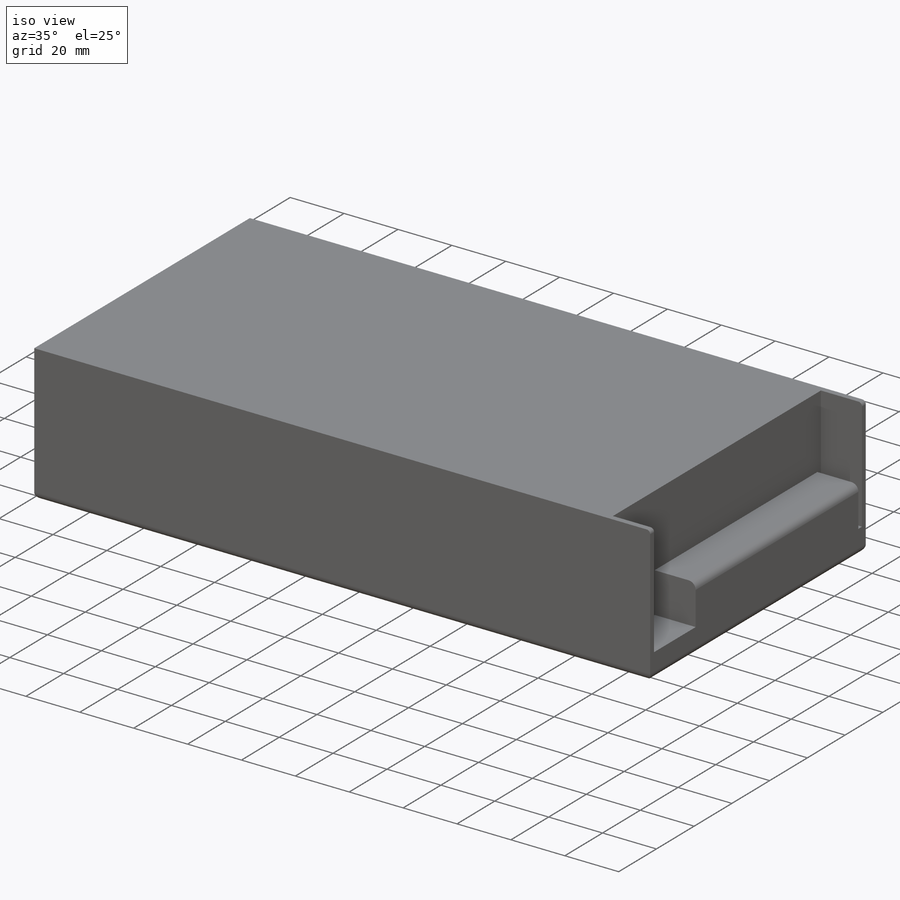
[diagram: iso view]
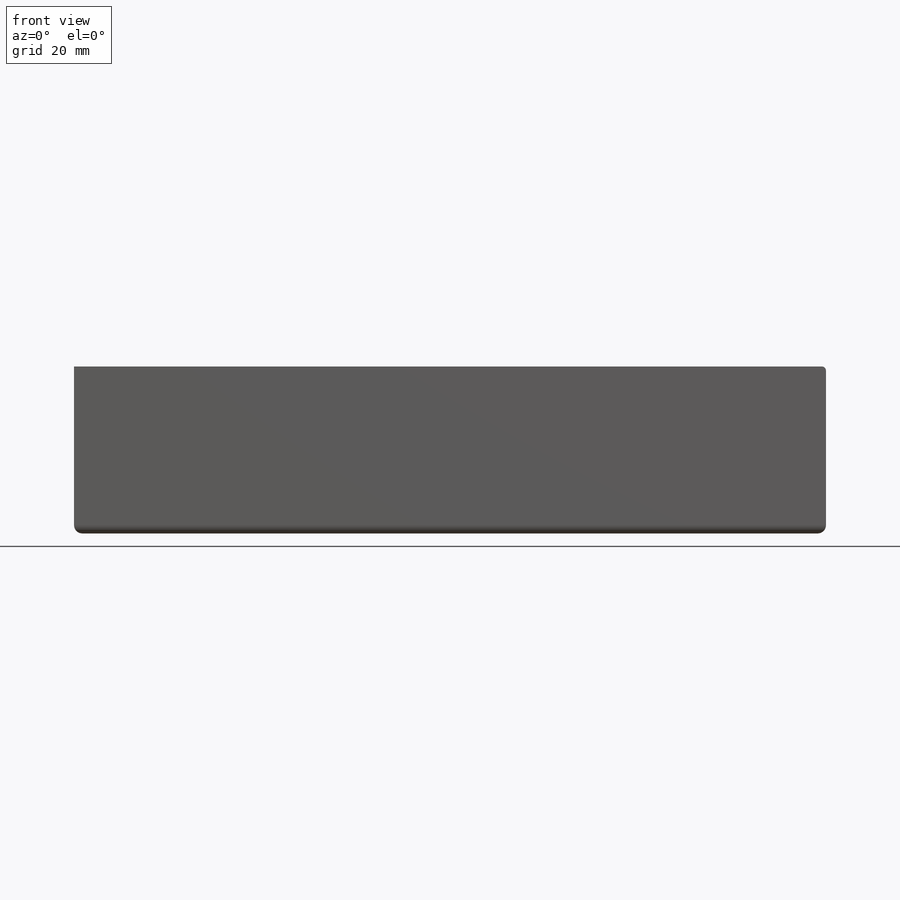
[diagram: front view]
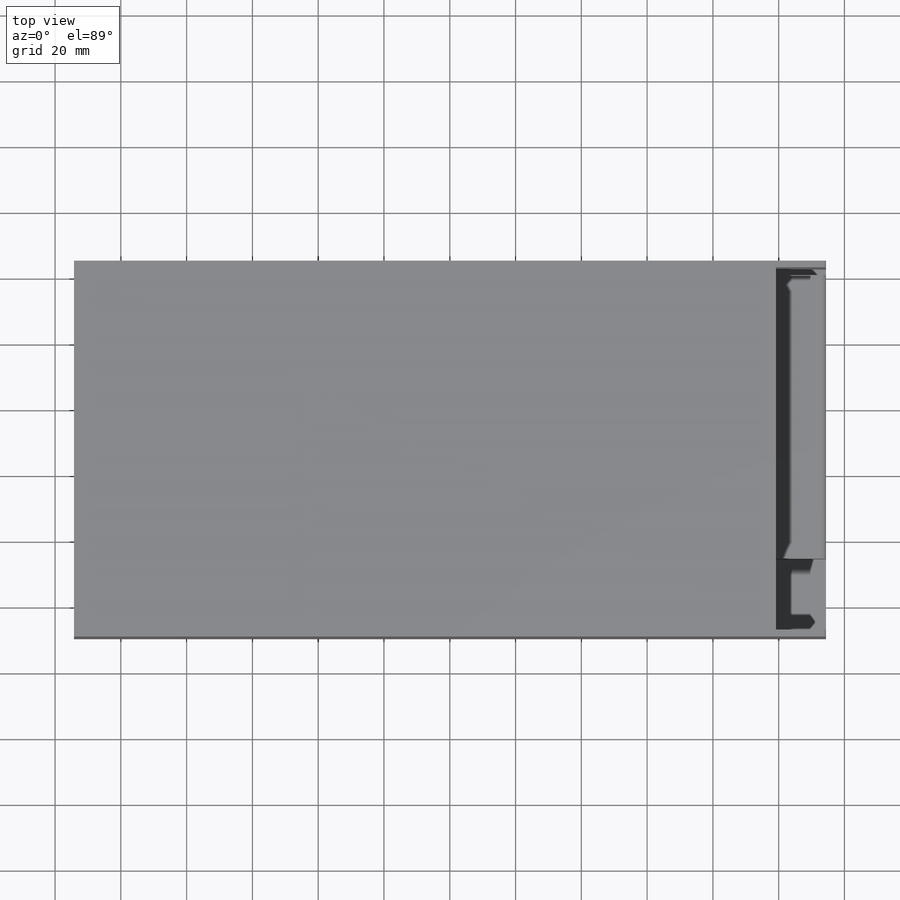
[diagram: top view]
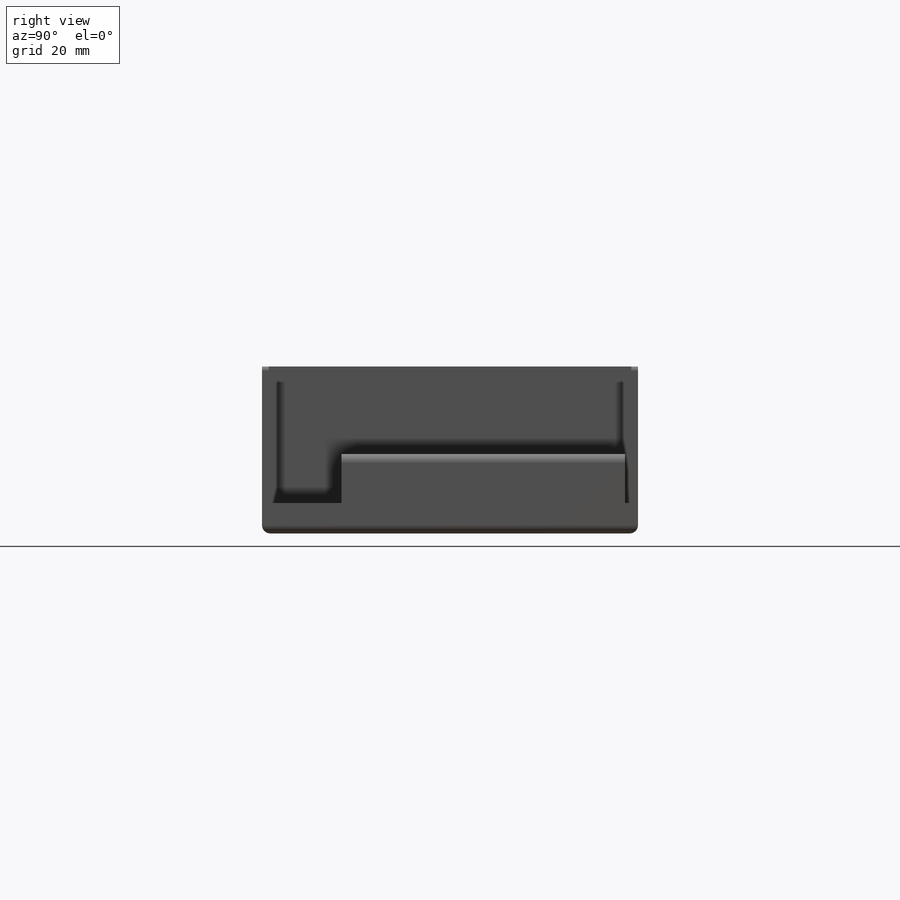
[diagram: right view]
SOLIDWORKS PART (.sldprt)
format: sldprt  version: not decoded by parser v0  size: 166,912 bytes
history: native  units: mm
features: sketch x3, fillet x3, extrude x2, material x1, cut_extrude x1 (+11 scaffold rows collapsed)
feature tree (21):
  scaffold x11  (default folders/planes/origin — collapsed)
  material  "1060 Alloy"
  sketch  "Sketch1"  dims[D1=228.6mm D2=114.3mm]
  extrude  "Boss-Extrude1"  Depth=50.8mm
  sketch  "Sketch2"  dims[D1=15.24mm D2=2.032mm D3=2.032mm]
  cut_extrude  "Cut-Extrude1"  Depth=41.6052mm
  sketch  "Sketch3"  dims[D1=10.16mm D2=22.098mm D3=1.8796mm]
  extrude  "Boss-Extrude2"  Depth=14.986mm
  fillet  "Fillet1"  Radius=2.54mm
  fillet  "Fillet2"  Radius=1.27mm
  fillet  "Fillet3"  Radius=2.54mm
decode coverage: 9 of 9 modeling features carry decoded parameters
note: suppression state not decoded; provenance and decode notes live in map.json
